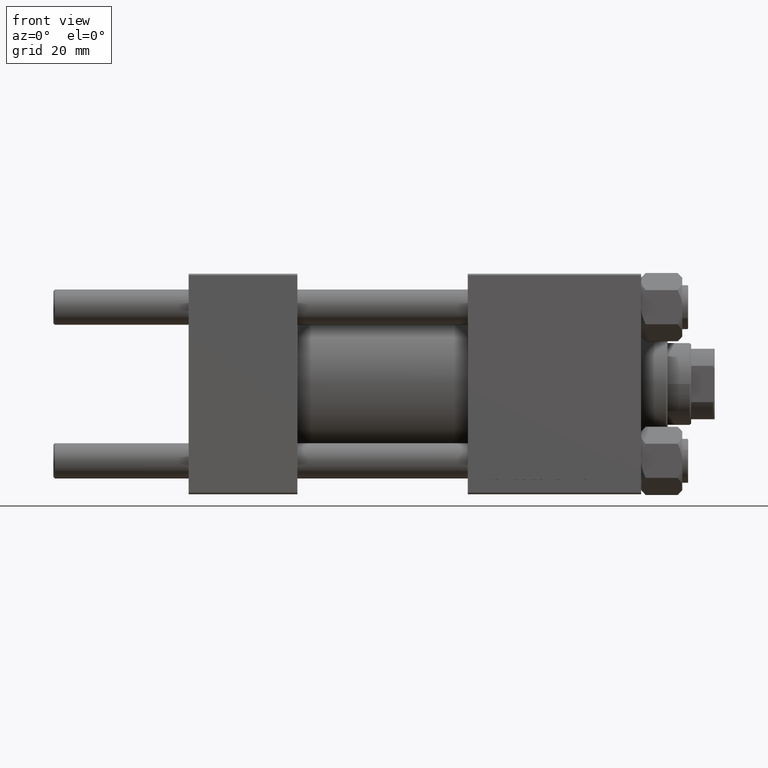
[diagram: clean part render]
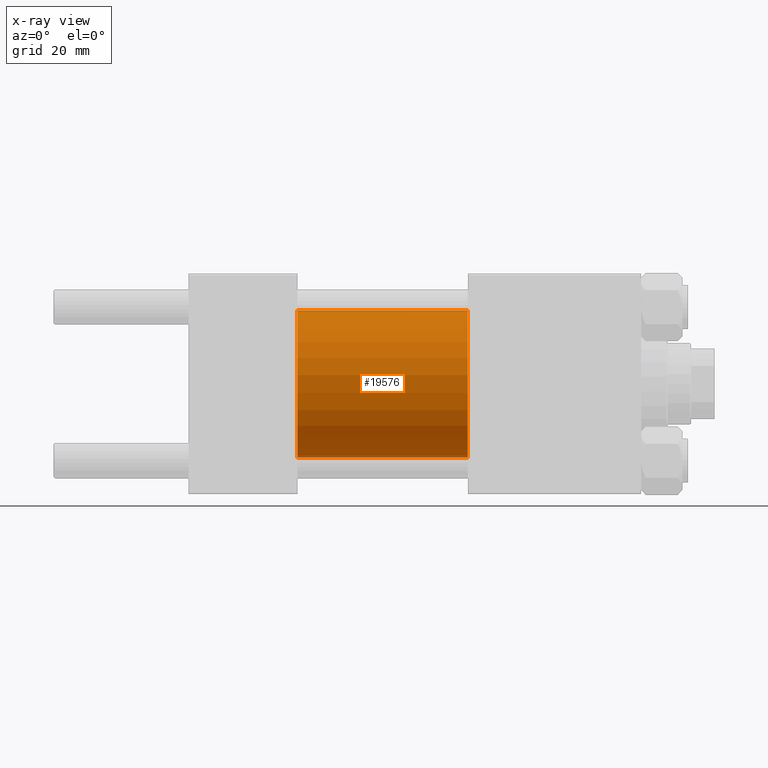
[diagram: x-ray — body ghosted, one internal face saturated and labeled with its STEP entity id]
A machine part, front view, then the same camera in x-ray: the body is ghosted and one INTERNAL B-rep face — a face not visible from any outside direction — is saturated and labeled: STEP entity #19576.
In plain terms, the highlighted cylindrical surface (partial cylindrical patch) has radius 25 mm, axis along (-1, -0, -0).
Its self-contained STEP definition (entity closure, byte-faithful):
#1202 = EDGE_CURVE ( 'NONE', #21712, #5800, #42319, .T. ) ;
#2594 = ORIENTED_EDGE ( 'NONE', *, *, #26763, .F. ) ;
#4485 = DIRECTION ( 'NONE',  ( 0.000000000000000000, 0.000000000000000000, -1.000000000000000000 ) ) ;
#5430 = DIRECTION ( 'NONE',  ( 0.000000000000000000, 0.000000000000000000, -1.000000000000000000 ) ) ;
#5800 = VERTEX_POINT ( 'NONE', #17518 ) ;
#8360 = CARTESIAN_POINT ( 'NONE',  ( 95.00000000000000000, 3.061616997868382254E-15, -25.00000000000000000 ) ) ;
#9314 = LINE ( 'NONE', #40014, #34873 ) ;
#9413 = ORIENTED_EDGE ( 'NONE', *, *, #29464, .T. ) ;
#9655 = CIRCLE ( 'NONE', #33802, 25.00000000000000000 ) ;
#12908 = CARTESIAN_POINT ( 'NONE',  ( 95.00000000000000000, 3.061616997868382254E-15, -25.00000000000000000 ) ) ;
#12962 = EDGE_CURVE ( 'NONE', #41692, #27367, #9655, .T. ) ;
#12984 = DIRECTION ( 'NONE',  ( 1.000000000000000000, 0.000000000000000000, 0.000000000000000000 ) ) ;
#13270 = DIRECTION ( 'NONE',  ( 1.000000000000000000, 0.000000000000000000, 0.000000000000000000 ) ) ;
#17518 = CARTESIAN_POINT ( 'NONE',  ( 37.00000000000000000, 3.061616997868382254E-15, -25.00000000000000000 ) ) ;
#17609 = CARTESIAN_POINT ( 'NONE',  ( 95.00000000000000000, 0.000000000000000000, 25.00000000000000000 ) ) ;
#18266 = ORIENTED_EDGE ( 'NONE', *, *, #12962, .T. ) ;
#19576 = ADVANCED_FACE ( 'NONE', ( #38138 ), #30821, .F. ) ;
#19703 = VECTOR ( 'NONE', #31259, 1000.000000000000000 ) ;
#19831 = CARTESIAN_POINT ( 'NONE',  ( 95.00000000000000000, 0.000000000000000000, 0.000000000000000000 ) ) ;
#21712 = VERTEX_POINT ( 'NONE', #48559 ) ;
#23269 = DIRECTION ( 'NONE',  ( 0.000000000000000000, 0.000000000000000000, 1.000000000000000000 ) ) ;
#24660 = DIRECTION ( 'NONE',  ( -1.000000000000000000, -0.000000000000000000, -0.000000000000000000 ) ) ;
#26763 = EDGE_CURVE ( 'NONE', #41692, #21712, #9314, .T. ) ;
#27367 = VERTEX_POINT ( 'NONE', #12908 ) ;
#28231 = AXIS2_PLACEMENT_3D ( 'NONE', #46164, #39122, #23269 ) ;
#29464 = EDGE_CURVE ( 'NONE', #27367, #5800, #46592, .T. ) ;
#30821 = CYLINDRICAL_SURFACE ( 'NONE', #28231, 25.00000000000000000 ) ;
#31259 = DIRECTION ( 'NONE',  ( -1.000000000000000000, -0.000000000000000000, -0.000000000000000000 ) ) ;
#33802 = AXIS2_PLACEMENT_3D ( 'NONE', #19831, #13270, #4485 ) ;
#34873 = VECTOR ( 'NONE', #24660, 1000.000000000000000 ) ;
#36256 = ORIENTED_EDGE ( 'NONE', *, *, #1202, .F. ) ;
#37706 = EDGE_LOOP ( 'NONE', ( #18266, #9413, #36256, #2594 ) ) ;
#38138 = FACE_OUTER_BOUND ( 'NONE', #37706, .T. ) ;
#39122 = DIRECTION ( 'NONE',  ( -1.000000000000000000, -0.000000000000000000, -0.000000000000000000 ) ) ;
#39906 = CARTESIAN_POINT ( 'NONE',  ( 37.00000000000000000, 0.000000000000000000, 0.000000000000000000 ) ) ;
#40014 = CARTESIAN_POINT ( 'NONE',  ( 95.00000000000000000, 0.000000000000000000, 25.00000000000000000 ) ) ;
#41692 = VERTEX_POINT ( 'NONE', #17609 ) ;
#42277 = AXIS2_PLACEMENT_3D ( 'NONE', #39906, #12984, #5430 ) ;
#42319 = CIRCLE ( 'NONE', #42277, 25.00000000000000000 ) ;
#46164 = CARTESIAN_POINT ( 'NONE',  ( 95.00000000000000000, 0.000000000000000000, 0.000000000000000000 ) ) ;
#46592 = LINE ( 'NONE', #8360, #19703 ) ;
#48559 = CARTESIAN_POINT ( 'NONE',  ( 37.00000000000000000, 0.000000000000000000, 25.00000000000000000 ) ) ;